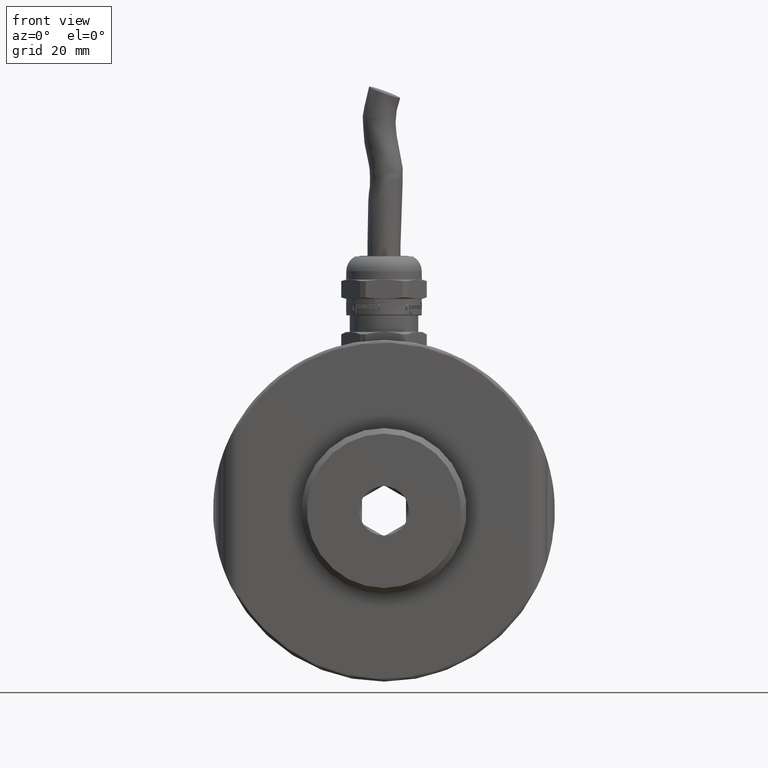
[diagram: clean part render]
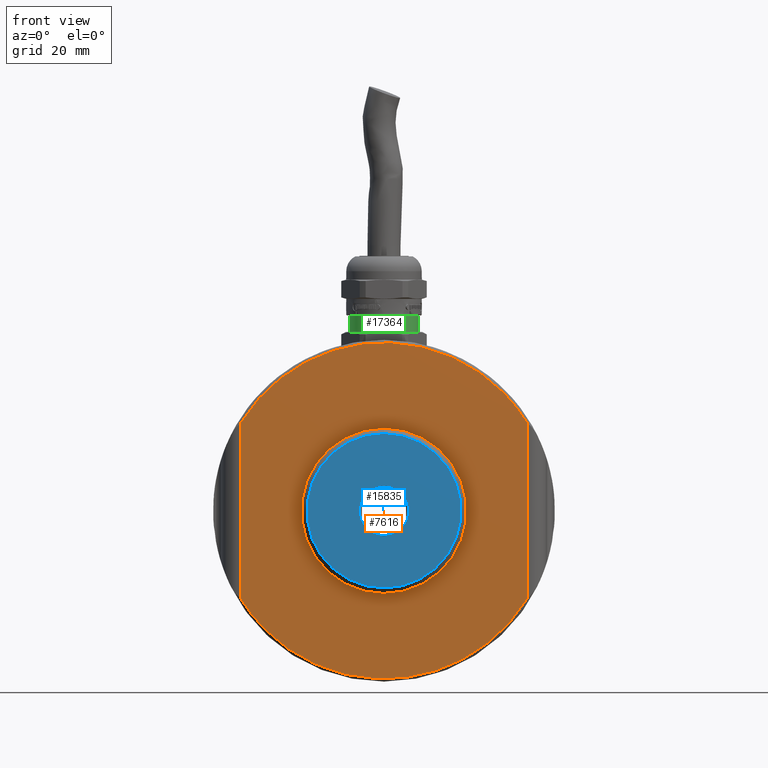
[diagram: same view with three faces highlighted in distinct colors, each labeled with its STEP entity id]
A machine part, front view with three faces highlighted in distinct colors.
Their STEP definitions:

[orange] entity #7616 — the highlighted planar face has unit normal (0, -1, 0).
#208 = CARTESIAN_POINT ( 'NONE',  ( 26.00000000000000355, 7.000000000000000888, 0.000000000000000000 ) ) ;
#216 = AXIS2_PLACEMENT_3D ( 'NONE', #3313, #7275, #2187 ) ;
#341 = DIRECTION ( 'NONE',  ( -0.000000000000000000, -0.000000000000000000, 1.000000000000000000 ) ) ;
#518 = CARTESIAN_POINT ( 'NONE',  ( -26.00000000000000355, 7.000000000000000888, -31.00000000000000000 ) ) ;
#1738 = EDGE_CURVE ( 'NONE', #8116, #13362, #7798, .T. ) ;
#2168 = CARTESIAN_POINT ( 'NONE',  ( -26.00000000000000355, 6.999999999999999112, 15.94521871910200161 ) ) ;
#2187 = DIRECTION ( 'NONE',  ( 0.000000000000000000, -0.000000000000000000, -1.000000000000000000 ) ) ;
#3091 = DIRECTION ( 'NONE',  ( -0.000000000000000000, -0.000000000000000000, -1.000000000000000000 ) ) ;
#3313 = CARTESIAN_POINT ( 'NONE',  ( 31.00000000000000000, 7.000000000000000000, 0.000000000000000000 ) ) ;
#3487 = FACE_OUTER_BOUND ( 'NONE', #10789, .T. ) ;
#3854 = CARTESIAN_POINT ( 'NONE',  ( 26.00000000000000355, 6.999999999999999112, 15.94521871910200161 ) ) ;
#3967 = DIRECTION ( 'NONE',  ( -0.000000000000000000, 1.000000000000000000, -0.000000000000000000 ) ) ;
#4565 = ORIENTED_EDGE ( 'NONE', *, *, #10274, .F. ) ;
#4672 = CARTESIAN_POINT ( 'NONE',  ( 26.00000000000000355, 6.999999999999999112, 15.94521871910200161 ) ) ;
#4812 = FACE_BOUND ( 'NONE', #10103, .T. ) ;
#5305 = ORIENTED_EDGE ( 'NONE', *, *, #10670, .F. ) ;
#5345 = CARTESIAN_POINT ( 'NONE',  ( 26.00000000000000355, 6.999999999999999112, -15.94521871910200161 ) ) ;
#5511 = AXIS2_PLACEMENT_3D ( 'NONE', #16048, #3967, #6418 ) ;
#5820 = CARTESIAN_POINT ( 'NONE',  ( 12.71028113539746762, 6.999999999999997335, -37.61520622863209695 ) ) ;
#6051 = VECTOR ( 'NONE', #341, 1000.000000000000000 ) ;
#6418 = DIRECTION ( 'NONE',  ( 0.000000000000000000, 0.000000000000000000, -1.000000000000000000 ) ) ;
#7275 = DIRECTION ( 'NONE',  ( 0.000000000000000000, -1.000000000000000000, 0.000000000000000000 ) ) ;
#7438 = VERTEX_POINT ( 'NONE', #16290 ) ;
#7616 = ADVANCED_FACE ( 'NONE', ( #4812, #3487 ), #14247, .T. ) ;
#7798 =( BOUNDED_CURVE ( )  B_SPLINE_CURVE ( 3, ( #7812, #10443, #13465, #3854 ),
 .UNSPECIFIED., .F., .T. ) 
 B_SPLINE_CURVE_WITH_KNOTS ( ( 4, 4 ),
 ( 0.000000000000000000, 1.000000000000000000 ),
 .UNSPECIFIED. ) 
 CURVE ( )  GEOMETRIC_REPRESENTATION_ITEM ( )  RATIONAL_B_SPLINE_CURVE ( ( 1.000000000000000000, 0.6818627042426665952, 0.6818627042426665952, 1.000000000000000000 ) ) 
 REPRESENTATION_ITEM ( '' )  );
#7812 = CARTESIAN_POINT ( 'NONE',  ( -26.00000000000000355, 6.999999999999999112, 15.94521871910200161 ) ) ;
#8116 = VERTEX_POINT ( 'NONE', #2168 ) ;
#9802 = ORIENTED_EDGE ( 'NONE', *, *, #14225, .T. ) ;
#9939 = CARTESIAN_POINT ( 'NONE',  ( 26.00000000000000355, 6.999999999999999112, -15.94521871910200161 ) ) ;
#10103 = EDGE_LOOP ( 'NONE', ( #9802 ) ) ;
#10274 = EDGE_CURVE ( 'NONE', #7438, #8116, #12575, .T. ) ;
#10443 = CARTESIAN_POINT ( 'NONE',  ( -12.71028113539746940, 6.999999999999997335, 37.61520622863209695 ) ) ;
#10670 = EDGE_CURVE ( 'NONE', #16271, #7438, #11379, .T. ) ;
#10680 = ORIENTED_EDGE ( 'NONE', *, *, #1738, .F. ) ;
#10789 = EDGE_LOOP ( 'NONE', ( #10680, #4565, #5305, #16374 ) ) ;
#11379 =( BOUNDED_CURVE ( )  B_SPLINE_CURVE ( 3, ( #5345, #5820, #16594, #17338 ),
 .UNSPECIFIED., .F., .T. ) 
 B_SPLINE_CURVE_WITH_KNOTS ( ( 4, 4 ),
 ( 0.000000000000000000, 1.000000000000000000 ),
 .UNSPECIFIED. ) 
 CURVE ( )  GEOMETRIC_REPRESENTATION_ITEM ( )  RATIONAL_B_SPLINE_CURVE ( ( 1.000000000000000000, 0.6818627042426665952, 0.6818627042426665952, 1.000000000000000000 ) ) 
 REPRESENTATION_ITEM ( '' )  );
#11521 = VECTOR ( 'NONE', #3091, 1000.000000000000000 ) ;
#12575 = LINE ( 'NONE', #518, #6051 ) ;
#13362 = VERTEX_POINT ( 'NONE', #4672 ) ;
#13465 = CARTESIAN_POINT ( 'NONE',  ( 12.71028113539746940, 6.999999999999997335, 37.61520622863208985 ) ) ;
#13660 = CIRCLE ( 'NONE', #5511, 15.00000000000000000 ) ;
#13993 = EDGE_CURVE ( 'NONE', #13362, #16271, #15168, .T. ) ;
#14110 = VERTEX_POINT ( 'NONE', #16741 ) ;
#14225 = EDGE_CURVE ( 'NONE', #14110, #14110, #13660, .T. ) ;
#14247 = PLANE ( 'NONE',  #216 ) ;
#15168 = LINE ( 'NONE', #208, #11521 ) ;
#16048 = CARTESIAN_POINT ( 'NONE',  ( 0.000000000000000000, 6.999999999999999112, 0.000000000000000000 ) ) ;
#16271 = VERTEX_POINT ( 'NONE', #9939 ) ;
#16290 = CARTESIAN_POINT ( 'NONE',  ( -26.00000000000000355, 6.999999999999999112, -15.94521871910199806 ) ) ;
#16374 = ORIENTED_EDGE ( 'NONE', *, *, #13993, .F. ) ;
#16594 = CARTESIAN_POINT ( 'NONE',  ( -12.71028113539747828, 6.999999999999997335, -37.61520622863208985 ) ) ;
#16741 = CARTESIAN_POINT ( 'NONE',  ( 0.000000000000000000, 6.999999999999999112, -15.00000000000000000 ) ) ;
#17338 = CARTESIAN_POINT ( 'NONE',  ( -26.00000000000000355, 6.999999999999999112, -15.94521871910199806 ) ) ;

[blue] entity #15835 — the highlighted planar face has unit normal (0, -1, 0).
#167 = CIRCLE ( 'NONE', #2970, 4.500000000000000888 ) ;
#875 = EDGE_LOOP ( 'NONE', ( #3435 ) ) ;
#1300 = AXIS2_PLACEMENT_3D ( 'NONE', #15182, #5903, #9694 ) ;
#2127 = VERTEX_POINT ( 'NONE', #6153 ) ;
#2970 = AXIS2_PLACEMENT_3D ( 'NONE', #16573, #4488, #12504 ) ;
#3435 = ORIENTED_EDGE ( 'NONE', *, *, #8409, .F. ) ;
#4029 = DIRECTION ( 'NONE',  ( 0.000000000000000000, -1.000000000000000000, 0.000000000000000000 ) ) ;
#4272 = VERTEX_POINT ( 'NONE', #5426 ) ;
#4488 = DIRECTION ( 'NONE',  ( -0.000000000000000000, 1.000000000000000000, -0.000000000000000000 ) ) ;
#5426 = CARTESIAN_POINT ( 'NONE',  ( 0.000000000000000000, 0.000000000000000000, 14.00000000000000000 ) ) ;
#5438 = PLANE ( 'NONE',  #8567 ) ;
#5903 = DIRECTION ( 'NONE',  ( -0.000000000000000000, 1.000000000000000000, 0.000000000000000000 ) ) ;
#6153 = CARTESIAN_POINT ( 'NONE',  ( 0.000000000000000000, 0.000000000000000000, -4.500000000000000888 ) ) ;
#6924 = FACE_OUTER_BOUND ( 'NONE', #875, .T. ) ;
#7276 = EDGE_LOOP ( 'NONE', ( #12855 ) ) ;
#8339 = DIRECTION ( 'NONE',  ( 0.000000000000000000, -0.000000000000000000, -1.000000000000000000 ) ) ;
#8409 = EDGE_CURVE ( 'NONE', #4272, #4272, #17333, .T. ) ;
#8567 = AXIS2_PLACEMENT_3D ( 'NONE', #9479, #4029, #8339 ) ;
#9479 = CARTESIAN_POINT ( 'NONE',  ( 15.00000000000000000, 3.061616997868379936E-17, 0.000000000000000000 ) ) ;
#9694 = DIRECTION ( 'NONE',  ( 0.000000000000000000, 0.000000000000000000, 1.000000000000000000 ) ) ;
#9843 = EDGE_CURVE ( 'NONE', #2127, #2127, #167, .T. ) ;
#12219 = FACE_BOUND ( 'NONE', #7276, .T. ) ;
#12504 = DIRECTION ( 'NONE',  ( 0.000000000000000000, 0.000000000000000000, -1.000000000000000000 ) ) ;
#12855 = ORIENTED_EDGE ( 'NONE', *, *, #9843, .T. ) ;
#15182 = CARTESIAN_POINT ( 'NONE',  ( 0.000000000000000000, 0.000000000000000000, 0.000000000000000000 ) ) ;
#15835 = ADVANCED_FACE ( 'NONE', ( #12219, #6924 ), #5438, .T. ) ;
#16573 = CARTESIAN_POINT ( 'NONE',  ( 0.000000000000000000, 0.000000000000000000, 0.000000000000000000 ) ) ;
#17333 = CIRCLE ( 'NONE', #1300, 14.00000000000000000 ) ;

[green] entity #17364 — the highlighted cylindrical surface (bore or boss wall) has radius 6.25 mm, axis along (-0, 0, 1).
#514 = EDGE_CURVE ( 'NONE', #5591, #5591, #8337, .T. ) ;
#724 = CARTESIAN_POINT ( 'NONE',  ( -2.312032654984327019E-33, 18.50000000000000000, 35.45000000000000284 ) ) ;
#1030 = DIRECTION ( 'NONE',  ( -3.853387758307211698E-34, 2.942327480148401961E-35, 1.000000000000000000 ) ) ;
#1472 = CARTESIAN_POINT ( 'NONE',  ( -1.156016327492162483E-33, 12.24999999999999822, 32.45000000000000995 ) ) ;
#2246 = AXIS2_PLACEMENT_3D ( 'NONE', #724, #9069, #17195 ) ;
#3579 = FACE_OUTER_BOUND ( 'NONE', #4995, .T. ) ;
#4017 = CARTESIAN_POINT ( 'NONE',  ( -2.312032654984327019E-33, 24.75000000000000000, 35.45000000000000284 ) ) ;
#4189 = VERTEX_POINT ( 'NONE', #4017 ) ;
#4995 = EDGE_LOOP ( 'NONE', ( #13003 ) ) ;
#5591 = VERTEX_POINT ( 'NONE', #1472 ) ;
#5910 = EDGE_CURVE ( 'NONE', #4189, #4189, #13211, .T. ) ;
#7476 = AXIS2_PLACEMENT_3D ( 'NONE', #13184, #1030, #7620 ) ;
#7620 = DIRECTION ( 'NONE',  ( 0.000000000000000000, 1.000000000000000000, 0.000000000000000000 ) ) ;
#8337 = CIRCLE ( 'NONE', #16787, 6.250000000000000000 ) ;
#9030 = FACE_OUTER_BOUND ( 'NONE', #10665, .T. ) ;
#9069 = DIRECTION ( 'NONE',  ( -3.853387758307211698E-34, 2.942327480148401961E-35, 1.000000000000000000 ) ) ;
#10086 = DIRECTION ( 'NONE',  ( 0.000000000000000000, -1.000000000000000000, 0.000000000000000000 ) ) ;
#10665 = EDGE_LOOP ( 'NONE', ( #15477 ) ) ;
#11235 = CARTESIAN_POINT ( 'NONE',  ( -1.156016327492162483E-33, 18.50000000000000000, 32.45000000000000995 ) ) ;
#12743 = DIRECTION ( 'NONE',  ( -3.853387758307211698E-34, 2.942327480148401961E-35, 1.000000000000000000 ) ) ;
#13003 = ORIENTED_EDGE ( 'NONE', *, *, #514, .T. ) ;
#13184 = CARTESIAN_POINT ( 'NONE',  ( -1.156016327492162483E-33, 18.50000000000000000, 32.45000000000000995 ) ) ;
#13211 = CIRCLE ( 'NONE', #2246, 6.250000000000001776 ) ;
#14593 = CYLINDRICAL_SURFACE ( 'NONE', #7476, 6.250000000000001776 ) ;
#15477 = ORIENTED_EDGE ( 'NONE', *, *, #5910, .F. ) ;
#16787 = AXIS2_PLACEMENT_3D ( 'NONE', #11235, #12743, #10086 ) ;
#17195 = DIRECTION ( 'NONE',  ( 0.000000000000000000, 1.000000000000000000, 0.000000000000000000 ) ) ;
#17364 = ADVANCED_FACE ( 'NONE', ( #9030, #3579 ), #14593, .T. ) ;